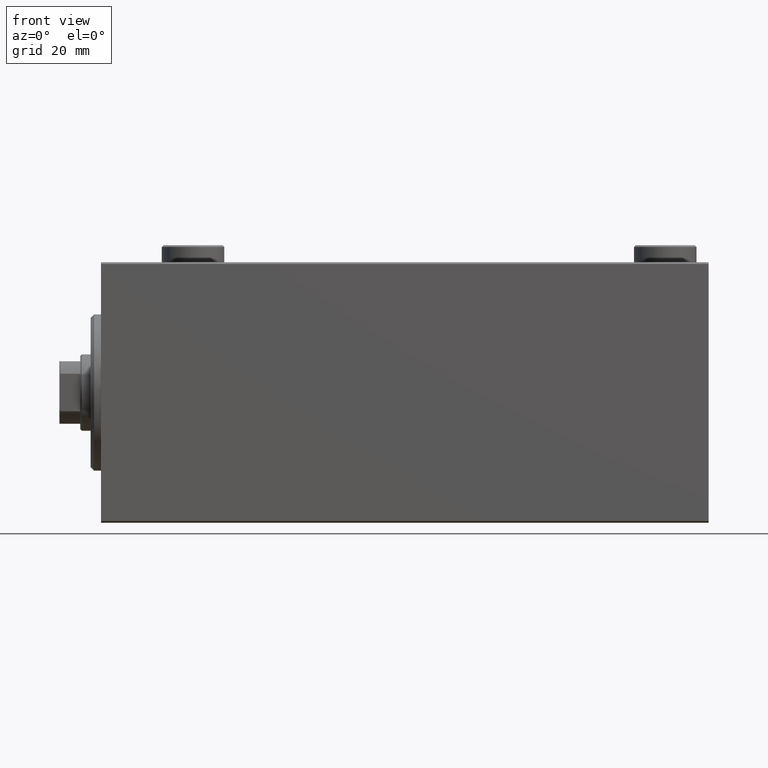
[diagram: clean part render]
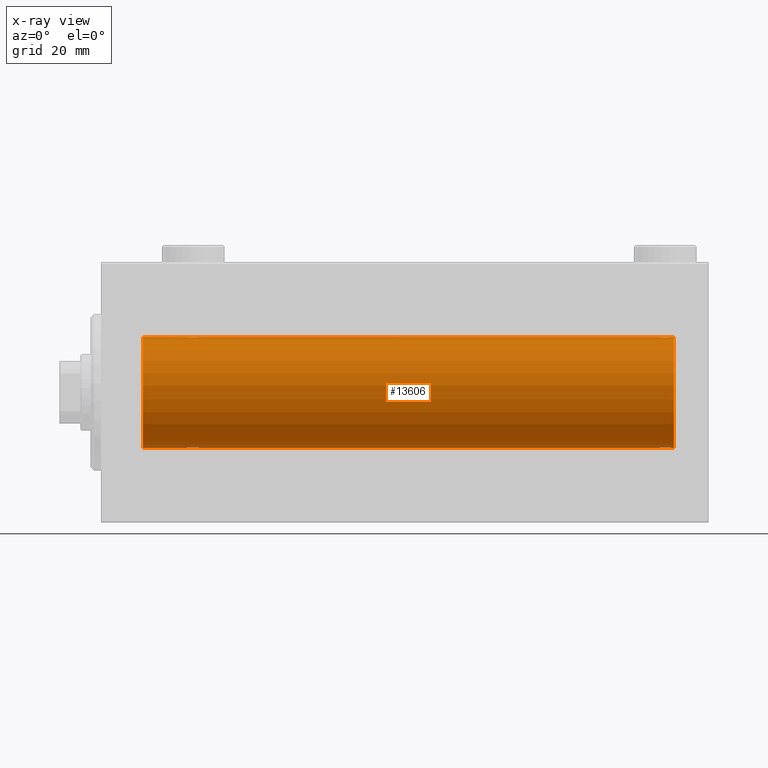
[diagram: x-ray — body ghosted, one internal face saturated and labeled with its STEP entity id]
A machine part, front view, then the same camera in x-ray: the body is ghosted and one INTERNAL B-rep face — a face not visible from any outside direction — is saturated and labeled: STEP entity #13606.
In plain terms, the highlighted cylindrical surface (partial cylindrical patch) has radius 16 mm, axis along (-1, -0, -0).
Its self-contained STEP definition (entity closure, byte-faithful):
#219 = CARTESIAN_POINT ( 'NONE',  ( 165.0000000000000000, 1.959434878635765131E-15, -16.00000000000000000 ) ) ;
#312 = CIRCLE ( 'NONE', #32735, 16.00000000000000000 ) ;
#485 = VECTOR ( 'NONE', #20025, 1000.000000000000000 ) ;
#803 = DIRECTION ( 'NONE',  ( 0.000000000000000000, 0.000000000000000000, 1.000000000000000000 ) ) ;
#1709 = DIRECTION ( 'NONE',  ( 0.000000000000000000, 0.000000000000000000, 1.000000000000000000 ) ) ;
#1962 = CARTESIAN_POINT ( 'NONE',  ( 161.9806288545207167, -1.935780515549996750, 15.88248768234623221 ) ) ;
#2245 = CARTESIAN_POINT ( 'NONE',  ( 160.5000000000000000, -0.2645044045393602494, -16.00000000000000000 ) ) ;
#2412 = CARTESIAN_POINT ( 'NONE',  ( 163.5007836575340718, -1.736521253711146517, 15.90565326803671731 ) ) ;
#2680 = CARTESIAN_POINT ( 'NONE',  ( 25.28178127159713995, -1.591545514129671046, -15.92081325887754417 ) ) ;
#2706 = CARTESIAN_POINT ( 'NONE',  ( 26.36633336824380436, -1.999904855391111402, 15.87451985347842687 ) ) ;
#3118 = B_SPLINE_CURVE_WITH_KNOTS ( 'NONE', 3,
 ( #22526, #16307, #33613, #13298, #19765, #5480, #37969, #34294, #37520, #24120, #33850, #30143, #2706, #6392, #5717, #44659, #12856, #20439, #19990, #30371, #30831, #45097, #9838, #12620, #26651, #23894 ),
 .UNSPECIFIED., .F., .F.,
 ( 4, 2, 2, 2, 2, 2, 2, 2, 2, 2, 2, 2, 4 ),
 ( 0.006259031236593858190, 0.007041222816026928080, 0.007823414395459998838, 0.008214510185176533349, 0.008605605974893067861, 0.008996701764609604107, 0.009387797554326138619, 0.009778893344042673130, 0.01016998913375920938, 0.01056108492347574389, 0.01095218071319227840, 0.01173437229262534048, 0.01251656387205840430 ),
 .UNSPECIFIED. ) ;
#3363 = CARTESIAN_POINT ( 'NONE',  ( 25.98335998918949841, -1.936513707523809469, -15.88239801746204805 ) ) ;
#4823 = EDGE_CURVE ( 'NONE', #7920, #31557, #3118, .T. ) ;
#5131 = B_SPLINE_CURVE_WITH_KNOTS ( 'NONE', 3,
 ( #29847, #26145, #19927, #9095, #8867, #43906, #9331, #34002, #23143, #19464, #1962, #30306, #44132, #12559, #44355, #37234, #6094, #5650, #2412, #27058, #16469, #30535, #41143, #9556, #20150, #27957 ),
 .UNSPECIFIED., .F., .F.,
 ( 4, 2, 2, 2, 2, 2, 2, 2, 2, 2, 2, 2, 4 ),
 ( 0.006259031236593856455, 0.007041222816026924611, 0.007823414395459991899, 0.008214510185176526411, 0.008605605974893060922, 0.008996701764609595434, 0.009387797554326129945, 0.009778893344042662722, 0.01016998913375919723, 0.01056108492347573174, 0.01095218071319226452, 0.01173437229262533181, 0.01251656387205839910 ),
 .UNSPECIFIED. ) ;
#5283 = CARTESIAN_POINT ( 'NONE',  ( 165.0000000000000000, 0.000000000000000000, 16.00000000000000000 ) ) ;
#5480 = CARTESIAN_POINT ( 'NONE',  ( 25.17695155286792286, -1.505501573616977673, 15.92928245046054947 ) ) ;
#5584 = CARTESIAN_POINT ( 'NONE',  ( 160.4999999999999716, -2.238448963845692285E-14, -16.00000000000000000 ) ) ;
#5650 = CARTESIAN_POINT ( 'NONE',  ( 163.3859214996849119, -1.797863738508695963, 15.89874935709251247 ) ) ;
#5717 = CARTESIAN_POINT ( 'NONE',  ( 26.76082820349364866, -1.987201773464435828, 15.87613558886576470 ) ) ;
#5916 = CARTESIAN_POINT ( 'NONE',  ( 26.36919591423421139, -2.000094120337574388, -15.87449600834271024 ) ) ;
#5973 = LINE ( 'NONE', #5283, #485 ) ;
#6094 = CARTESIAN_POINT ( 'NONE',  ( 163.1437667071733983, -1.898087287925298128, 15.88709570026284723 ) ) ;
#6392 = CARTESIAN_POINT ( 'NONE',  ( 26.63080408576578861, -2.000094120337581050, 15.87449600834271735 ) ) ;
#6593 = CARTESIAN_POINT ( 'NONE',  ( 26.76370462878175260, -1.986819684797417995, -15.87618369521984185 ) ) ;
#7283 = ORIENTED_EDGE ( 'NONE', *, *, #40569, .F. ) ;
#7607 = B_SPLINE_CURVE_WITH_KNOTS ( 'NONE', 3,
 ( #8700, #15843, #22966, #26886, #9152, #25969, #44187, #36602, #43726, #16297, #44411, #29902, #12610, #23200, #30361, #40284, #37289, #22748, #43501, #33364, #43963, #26198, #37510, #29662, #2245, #37052 ),
 .UNSPECIFIED., .F., .F.,
 ( 4, 2, 2, 2, 2, 2, 2, 2, 2, 2, 2, 2, 4 ),
 ( 0.006259031236593847781, 0.007041222816026931550, 0.007823414395460014450, 0.008214510185176555901, 0.008605605974893097351, 0.008996701764609638802, 0.009387797554326181987, 0.009778893344042723437, 0.01016998913375926489, 0.01056108492347580634, 0.01095218071319234779, 0.01173437229262537171, 0.01251656387205839736 ),
 .UNSPECIFIED. ) ;
#7920 = VERTEX_POINT ( 'NONE', #41819 ) ;
#7987 = VERTEX_POINT ( 'NONE', #39506 ) ;
#8537 = VERTEX_POINT ( 'NONE', #16031 ) ;
#8700 = CARTESIAN_POINT ( 'NONE',  ( 164.4999999999999716, 1.959434851248285101E-15, -16.00000000000000000 ) ) ;
#8713 = ORIENTED_EDGE ( 'NONE', *, *, #36876, .F. ) ;
#8867 = CARTESIAN_POINT ( 'NONE',  ( 160.9006141867461679, -1.228793614424107172, 15.95381972293797013 ) ) ;
#9095 = CARTESIAN_POINT ( 'NONE',  ( 160.7518337299378572, -1.005876079953900604, 15.97016854943970188 ) ) ;
#9152 = CARTESIAN_POINT ( 'NONE',  ( 164.0993858132537753, -1.228793614424117386, -15.95381972293797013 ) ) ;
#9327 = ORIENTED_EDGE ( 'NONE', *, *, #12554, .T. ) ;
#9331 = CARTESIAN_POINT ( 'NONE',  ( 161.2797196652158505, -1.589957129871026664, 15.92097237843274193 ) ) ;
#9534 = ORIENTED_EDGE ( 'NONE', *, *, #32871, .F. ) ;
#9556 = CARTESIAN_POINT ( 'NONE',  ( 164.4467400469564211, -0.5272875822566903681, 15.99312147175147381 ) ) ;
#9593 = CARTESIAN_POINT ( 'NONE',  ( 26.23917179650637266, -1.987201773464430055, -15.87613558886576470 ) ) ;
#9770 = LINE ( 'NONE', #34227, #13080 ) ;
#9838 = CARTESIAN_POINT ( 'NONE',  ( 28.24678128854693426, -1.008257970366811751, 15.97001510549667103 ) ) ;
#10188 = CARTESIAN_POINT ( 'NONE',  ( 165.0000000000000000, 0.000000000000000000, 16.00000000000000000 ) ) ;
#10232 = DIRECTION ( 'NONE',  ( -1.000000000000000000, -0.000000000000000000, -0.000000000000000000 ) ) ;
#11337 = ORIENTED_EDGE ( 'NONE', *, *, #22426, .T. ) ;
#11568 = ORIENTED_EDGE ( 'NONE', *, *, #4823, .T. ) ;
#11901 = VERTEX_POINT ( 'NONE', #14739 ) ;
#12087 = CARTESIAN_POINT ( 'NONE',  ( 12.00000000000001066, 0.000000000000000000, 0.000000000000000000 ) ) ;
#12319 = LINE ( 'NONE', #36761, #27483 ) ;
#12554 = EDGE_CURVE ( 'NONE', #32126, #11901, #312, .T. ) ;
#12559 = CARTESIAN_POINT ( 'NONE',  ( 162.6308040857657318, -2.000094120337579717, 15.87449600834271379 ) ) ;
#12610 = CARTESIAN_POINT ( 'NONE',  ( 162.6336666317561708, -1.999904855391120506, -15.87451985347842331 ) ) ;
#12620 = CARTESIAN_POINT ( 'NONE',  ( 28.44674004695639624, -0.5272875822566815973, 15.99312147175146670 ) ) ;
#12833 = CARTESIAN_POINT ( 'NONE',  ( 24.50000000000000000, -2.931586893697621157E-15, -16.00000000000000000 ) ) ;
#12856 = CARTESIAN_POINT ( 'NONE',  ( 27.14376670717340545, -1.898087287925302125, 15.88709570026284545 ) ) ;
#13080 = VECTOR ( 'NONE', #10232, 1000.000000000000000 ) ;
#13234 = ORIENTED_EDGE ( 'NONE', *, *, #42494, .T. ) ;
#13273 = CARTESIAN_POINT ( 'NONE',  ( 24.50000000000000711, -0.2645044045393414311, -16.00000000000000355 ) ) ;
#13298 = CARTESIAN_POINT ( 'NONE',  ( 24.75183372993787856, -1.005876079953904600, 15.97016854943970543 ) ) ;
#13374 = EDGE_CURVE ( 'NONE', #43251, #7987, #35272, .T. ) ;
#13492 = CARTESIAN_POINT ( 'NONE',  ( 26.63366663175618498, -1.999904855391105851, -15.87451985347842687 ) ) ;
#13606 = ADVANCED_FACE ( 'NONE', ( #40767 ), #24530, .F. ) ;
#13825 = DIRECTION ( 'NONE',  ( -1.000000000000000000, -0.000000000000000000, -0.000000000000000000 ) ) ;
#14639 = DIRECTION ( 'NONE',  ( -1.000000000000000000, 0.000000000000000000, 0.000000000000000000 ) ) ;
#14739 = CARTESIAN_POINT ( 'NONE',  ( 12.00000000000001066, 0.000000000000000000, 16.00000000000000000 ) ) ;
#14847 = VERTEX_POINT ( 'NONE', #12833 ) ;
#15554 = LINE ( 'NONE', #20932, #43273 ) ;
#15843 = CARTESIAN_POINT ( 'NONE',  ( 164.5000000000000284, -0.2611263091397180158, -16.00000000000000000 ) ) ;
#16031 = CARTESIAN_POINT ( 'NONE',  ( 28.49999999999999645, 1.959434851239213200E-15, -16.00000000000000000 ) ) ;
#16151 = ORIENTED_EDGE ( 'NONE', *, *, #26968, .T. ) ;
#16297 = CARTESIAN_POINT ( 'NONE',  ( 163.1463636287045631, -1.897207606501654764, -15.88720136683947537 ) ) ;
#16307 = CARTESIAN_POINT ( 'NONE',  ( 24.50000000000000355, -0.2611263091397209579, 16.00000000000000000 ) ) ;
#16469 = CARTESIAN_POINT ( 'NONE',  ( 163.8210433480340384, -1.507256214862776167, 15.92911555180481820 ) ) ;
#16736 = CARTESIAN_POINT ( 'NONE',  ( 24.75321871145306218, -1.008257970366813749, -15.97001510549667458 ) ) ;
#17177 = CARTESIAN_POINT ( 'NONE',  ( 24.55325995304361086, -0.5272875822566835957, -15.99312147175147736 ) ) ;
#17409 = CARTESIAN_POINT ( 'NONE',  ( 165.0000000000000000, 0.000000000000000000, 0.000000000000000000 ) ) ;
#17478 = DIRECTION ( 'NONE',  ( -1.000000000000000000, -0.000000000000000000, -0.000000000000000000 ) ) ;
#18006 = AXIS2_PLACEMENT_3D ( 'NONE', #28457, #30851, #803 ) ;
#18893 = VERTEX_POINT ( 'NONE', #10188 ) ;
#19213 = DIRECTION ( 'NONE',  ( 0.000000000000000000, 0.000000000000000000, 1.000000000000000000 ) ) ;
#19464 = CARTESIAN_POINT ( 'NONE',  ( 161.8536363712953801, -1.897207606501642996, 15.88720136683947537 ) ) ;
#19765 = CARTESIAN_POINT ( 'NONE',  ( 24.90061418674620342, -1.228793614424124714, 15.95381972293797368 ) ) ;
#19915 = ORIENTED_EDGE ( 'NONE', *, *, #34025, .T. ) ;
#19927 = CARTESIAN_POINT ( 'NONE',  ( 160.5524885896873002, -0.5244724041436295003, 15.99321727742820975 ) ) ;
#19966 = CARTESIAN_POINT ( 'NONE',  ( 24.50000000000000000, -2.931586893697621157E-15, -16.00000000000000000 ) ) ;
#19990 = CARTESIAN_POINT ( 'NONE',  ( 27.50078365753405407, -1.736521253711149182, 15.90565326803671375 ) ) ;
#20025 = DIRECTION ( 'NONE',  ( -1.000000000000000000, -0.000000000000000000, -0.000000000000000000 ) ) ;
#20142 = CARTESIAN_POINT ( 'NONE',  ( 164.4999999999999716, -5.805030688536432137E-15, 16.00000000000000000 ) ) ;
#20150 = CARTESIAN_POINT ( 'NONE',  ( 164.4999999999999716, -0.2645044045393381005, 16.00000000000000711 ) ) ;
#20439 = CARTESIAN_POINT ( 'NONE',  ( 27.38592149968496514, -1.797863738508701736, 15.89874935709250892 ) ) ;
#20932 = CARTESIAN_POINT ( 'NONE',  ( 165.0000000000000000, 1.959434878635765131E-15, -16.00000000000000000 ) ) ;
#21913 = VERTEX_POINT ( 'NONE', #5584 ) ;
#22426 = EDGE_CURVE ( 'NONE', #21913, #8537, #15554, .T. ) ;
#22499 = EDGE_CURVE ( 'NONE', #42495, #29817, #5131, .T. ) ;
#22526 = CARTESIAN_POINT ( 'NONE',  ( 24.50000000000000000, -2.739635037742051899E-23, 16.00000000000000000 ) ) ;
#22748 = CARTESIAN_POINT ( 'NONE',  ( 161.6140785003150029, -1.797863738508707954, -15.89874935709249826 ) ) ;
#22966 = CARTESIAN_POINT ( 'NONE',  ( 164.4475114103126430, -0.5244724041436316098, -15.99321727742820975 ) ) ;
#23143 = CARTESIAN_POINT ( 'NONE',  ( 161.6115385917071876, -1.796613193944146980, 15.89889131367403330 ) ) ;
#23200 = CARTESIAN_POINT ( 'NONE',  ( 162.3691959142342398, -2.000094120337590375, -15.87449600834270313 ) ) ;
#23417 = CARTESIAN_POINT ( 'NONE',  ( 25.61407850031505617, -1.797863738508699294, -15.89874935709251247 ) ) ;
#23866 = CARTESIAN_POINT ( 'NONE',  ( 28.24816627006211078, -1.005876079953899049, -15.97016854943970188 ) ) ;
#23894 = CARTESIAN_POINT ( 'NONE',  ( 28.49999999999999645, -1.207828523974853969E-15, 16.00000000000000000 ) ) ;
#24093 = CARTESIAN_POINT ( 'NONE',  ( 28.09938581325380724, -1.228793614424118497, -15.95381972293796835 ) ) ;
#24120 = CARTESIAN_POINT ( 'NONE',  ( 25.85363637129542624, -1.897207606501653432, 15.88720136683947182 ) ) ;
#24530 = CYLINDRICAL_SURFACE ( 'NONE', #18006, 16.00000000000000000 ) ;
#24710 = ORIENTED_EDGE ( 'NONE', *, *, #22499, .T. ) ;
#25384 = EDGE_CURVE ( 'NONE', #7920, #11901, #12319, .T. ) ;
#25969 = CARTESIAN_POINT ( 'NONE',  ( 163.8230484471320949, -1.505501573616972344, -15.92928245046055657 ) ) ;
#26145 = CARTESIAN_POINT ( 'NONE',  ( 160.4999999999999716, -0.2611263091397192926, 16.00000000000000000 ) ) ;
#26198 = CARTESIAN_POINT ( 'NONE',  ( 160.9023686404280227, -1.231048876942829384, -15.95364199493483959 ) ) ;
#26353 = DIRECTION ( 'NONE',  ( -1.000000000000000000, 0.000000000000000000, 0.000000000000000000 ) ) ;
#26651 = CARTESIAN_POINT ( 'NONE',  ( 28.49999999999999289, -0.2645044045393371013, 16.00000000000000000 ) ) ;
#26886 = CARTESIAN_POINT ( 'NONE',  ( 164.2481662700621428, -1.005876079953903268, -15.97016854943969832 ) ) ;
#26968 = EDGE_CURVE ( 'NONE', #7987, #21913, #7607, .T. ) ;
#27058 = CARTESIAN_POINT ( 'NONE',  ( 163.7182187284028032, -1.591545514129670824, 15.92081325887754595 ) ) ;
#27099 = CARTESIAN_POINT ( 'NONE',  ( 28.44751141031268915, -0.5244724041436300555, -15.99321727742820620 ) ) ;
#27316 = CARTESIAN_POINT ( 'NONE',  ( 27.72028033478412112, -1.589957129871027330, -15.92097237843274904 ) ) ;
#27413 = ORIENTED_EDGE ( 'NONE', *, *, #13374, .T. ) ;
#27483 = VECTOR ( 'NONE', #37438, 1000.000000000000000 ) ;
#27546 = CARTESIAN_POINT ( 'NONE',  ( 25.17895665196594379, -1.507256214862784161, -15.92911555180481820 ) ) ;
#27957 = CARTESIAN_POINT ( 'NONE',  ( 164.4999999999999716, -5.805030688536432137E-15, 16.00000000000000000 ) ) ;
#28457 = CARTESIAN_POINT ( 'NONE',  ( 165.0000000000000000, 0.000000000000000000, 0.000000000000000000 ) ) ;
#28559 = CARTESIAN_POINT ( 'NONE',  ( 12.00000000000001066, 1.959434878635765131E-15, -16.00000000000000000 ) ) ;
#29662 = CARTESIAN_POINT ( 'NONE',  ( 160.5532599530435789, -0.5272875822567044679, -15.99312147175147025 ) ) ;
#29773 = CARTESIAN_POINT ( 'NONE',  ( 160.4999999999999716, -2.738767290746308786E-23, 16.00000000000000000 ) ) ;
#29817 = VERTEX_POINT ( 'NONE', #20142 ) ;
#29847 = CARTESIAN_POINT ( 'NONE',  ( 160.4999999999999716, -2.738767290746308786E-23, 16.00000000000000000 ) ) ;
#29902 = CARTESIAN_POINT ( 'NONE',  ( 162.7637046287817668, -1.986819684797435759, -15.87618369521983830 ) ) ;
#30143 = CARTESIAN_POINT ( 'NONE',  ( 26.23629537121825095, -1.986819684797424435, 15.87618369521983475 ) ) ;
#30306 = CARTESIAN_POINT ( 'NONE',  ( 162.2362953712182332, -1.986819684797424435, 15.87618369521983830 ) ) ;
#30343 = CARTESIAN_POINT ( 'NONE',  ( 24.90236864042802267, -1.231048876942801407, -15.95364199493483426 ) ) ;
#30361 = CARTESIAN_POINT ( 'NONE',  ( 162.2391717965064117, -1.987201773464449595, -15.87613558886576115 ) ) ;
#30371 = CARTESIAN_POINT ( 'NONE',  ( 27.71821872840285295, -1.591545514129674821, 15.92081325887754595 ) ) ;
#30535 = CARTESIAN_POINT ( 'NONE',  ( 164.0976313595719489, -1.231048876942790749, 15.95364199493483959 ) ) ;
#30556 = VECTOR ( 'NONE', #13825, 1000.000000000000000 ) ;
#30574 = CIRCLE ( 'NONE', #37937, 16.00000000000000000 ) ;
#30831 = CARTESIAN_POINT ( 'NONE',  ( 27.82104334803405266, -1.507256214862787713, 15.92911555180482530 ) ) ;
#30851 = DIRECTION ( 'NONE',  ( -1.000000000000000000, -0.000000000000000000, -0.000000000000000000 ) ) ;
#31557 = VERTEX_POINT ( 'NONE', #33973 ) ;
#32126 = VERTEX_POINT ( 'NONE', #28559 ) ;
#32735 = AXIS2_PLACEMENT_3D ( 'NONE', #12087, #26353, #19213 ) ;
#32871 = EDGE_CURVE ( 'NONE', #43251, #18893, #30574, .T. ) ;
#33025 = LINE ( 'NONE', #40159, #33808 ) ;
#33364 = CARTESIAN_POINT ( 'NONE',  ( 161.2817812715971115, -1.591545514129687922, -15.92081325887754417 ) ) ;
#33613 = CARTESIAN_POINT ( 'NONE',  ( 24.55248858968731085, -0.5244724041436337192, 15.99321727742820975 ) ) ;
#33808 = VECTOR ( 'NONE', #36925, 1000.000000000000000 ) ;
#33850 = CARTESIAN_POINT ( 'NONE',  ( 25.98062885452072734, -1.935780515549995862, 15.88248768234623221 ) ) ;
#33973 = CARTESIAN_POINT ( 'NONE',  ( 28.49999999999999645, -1.207828523974853969E-15, 16.00000000000000000 ) ) ;
#34002 = CARTESIAN_POINT ( 'NONE',  ( 161.4967921520867549, -1.735114343256362490, 15.90580722143557502 ) ) ;
#34025 = EDGE_CURVE ( 'NONE', #8537, #14847, #36868, .T. ) ;
#34227 = CARTESIAN_POINT ( 'NONE',  ( 165.0000000000000000, 0.000000000000000000, 16.00000000000000000 ) ) ;
#34269 = CARTESIAN_POINT ( 'NONE',  ( 25.49921634246596014, -1.736521253711144963, -15.90565326803671375 ) ) ;
#34294 = CARTESIAN_POINT ( 'NONE',  ( 25.49679215208682592, -1.735114343256370262, 15.90580722143557502 ) ) ;
#34713 = CARTESIAN_POINT ( 'NONE',  ( 27.01937114547927266, -1.935780515549990088, -15.88248768234623576 ) ) ;
#34944 = CARTESIAN_POINT ( 'NONE',  ( 25.85623329282660166, -1.898087287925298794, -15.88709570026284545 ) ) ;
#35272 = LINE ( 'NONE', #219, #30556 ) ;
#36602 = CARTESIAN_POINT ( 'NONE',  ( 163.5032078479131314, -1.735114343256374925, -15.90580722143557857 ) ) ;
#36761 = CARTESIAN_POINT ( 'NONE',  ( 165.0000000000000000, 0.000000000000000000, 16.00000000000000000 ) ) ;
#36868 = B_SPLINE_CURVE_WITH_KNOTS ( 'NONE', 3,
 ( #45070, #44861, #27099, #23866, #24093, #41182, #27316, #45312, #37715, #38171, #34713, #6593, #13492, #5916, #9593, #3363, #34944, #23417, #34269, #2680, #27546, #30343, #16736, #17177, #13273, #19966 ),
 .UNSPECIFIED., .F., .F.,
 ( 4, 2, 2, 2, 2, 2, 2, 2, 2, 2, 2, 2, 4 ),
 ( 0.006259031236593877272, 0.007041222816026943693, 0.007823414395460009246, 0.008214510185176542023, 0.008605605974893074800, 0.008996701764609607577, 0.009387797554326140353, 0.009778893344042673130, 0.01016998913375920591, 0.01056108492347573868, 0.01095218071319227146, 0.01173437229262534222, 0.01251656387205841471 ),
 .UNSPECIFIED. ) ;
#36876 = EDGE_CURVE ( 'NONE', #18893, #29817, #5973, .T. ) ;
#36925 = DIRECTION ( 'NONE',  ( -1.000000000000000000, -0.000000000000000000, -0.000000000000000000 ) ) ;
#37052 = CARTESIAN_POINT ( 'NONE',  ( 160.4999999999999716, -2.238448963845692285E-14, -16.00000000000000000 ) ) ;
#37234 = CARTESIAN_POINT ( 'NONE',  ( 163.0166400108104767, -1.936513707523814354, 15.88239801746205160 ) ) ;
#37289 = CARTESIAN_POINT ( 'NONE',  ( 161.8562332928265732, -1.898087287925310562, -15.88709570026284723 ) ) ;
#37438 = DIRECTION ( 'NONE',  ( -1.000000000000000000, -0.000000000000000000, -0.000000000000000000 ) ) ;
#37510 = CARTESIAN_POINT ( 'NONE',  ( 160.7532187114530586, -1.008257970366834178, -15.97001510549667458 ) ) ;
#37520 = CARTESIAN_POINT ( 'NONE',  ( 25.61153859170720537, -1.796613193944160969, 15.89889131367403685 ) ) ;
#37715 = CARTESIAN_POINT ( 'NONE',  ( 27.38846140829280529, -1.796613193944152753, -15.89889131367403330 ) ) ;
#37937 = AXIS2_PLACEMENT_3D ( 'NONE', #17409, #14639, #1709 ) ;
#37969 = CARTESIAN_POINT ( 'NONE',  ( 25.27971966521589664, -1.589957129871035768, 15.92097237843274549 ) ) ;
#38171 = CARTESIAN_POINT ( 'NONE',  ( 27.14636362870458086, -1.897207606501646104, -15.88720136683947537 ) ) ;
#39506 = CARTESIAN_POINT ( 'NONE',  ( 164.4999999999999716, 1.959434851248285101E-15, -16.00000000000000000 ) ) ;
#40159 = CARTESIAN_POINT ( 'NONE',  ( 165.0000000000000000, 1.959434878635765131E-15, -16.00000000000000000 ) ) ;
#40284 = CARTESIAN_POINT ( 'NONE',  ( 161.9833599891895233, -1.936513707523834338, -15.88239801746204805 ) ) ;
#40569 = EDGE_CURVE ( 'NONE', #42495, #31557, #9770, .T. ) ;
#40767 = FACE_OUTER_BOUND ( 'NONE', #41668, .T. ) ;
#41143 = CARTESIAN_POINT ( 'NONE',  ( 164.2467812885468845, -1.008257970366816636, 15.97001510549667103 ) ) ;
#41182 = CARTESIAN_POINT ( 'NONE',  ( 27.82304844713206293, -1.505501573616970568, -15.92928245046054947 ) ) ;
#41668 = EDGE_LOOP ( 'NONE', ( #9534, #27413, #16151, #11337, #19915, #13234, #9327, #42088, #11568, #7283, #24710, #8713 ) ) ;
#41819 = CARTESIAN_POINT ( 'NONE',  ( 24.50000000000000000, -2.739635037742051899E-23, 16.00000000000000000 ) ) ;
#42088 = ORIENTED_EDGE ( 'NONE', *, *, #25384, .F. ) ;
#42494 = EDGE_CURVE ( 'NONE', #14847, #32126, #33025, .T. ) ;
#42495 = VERTEX_POINT ( 'NONE', #29773 ) ;
#43251 = VERTEX_POINT ( 'NONE', #45326 ) ;
#43273 = VECTOR ( 'NONE', #17478, 1000.000000000000000 ) ;
#43501 = CARTESIAN_POINT ( 'NONE',  ( 161.4992163424659566, -1.736521253711160728, -15.90565326803670665 ) ) ;
#43726 = CARTESIAN_POINT ( 'NONE',  ( 163.3884614082928124, -1.796613193944159637, -15.89889131367402975 ) ) ;
#43906 = CARTESIAN_POINT ( 'NONE',  ( 161.1769515528679051, -1.505501573616961686, 15.92928245046055302 ) ) ;
#43963 = CARTESIAN_POINT ( 'NONE',  ( 161.1789566519659331, -1.507256214862809918, -15.92911555180481464 ) ) ;
#44132 = CARTESIAN_POINT ( 'NONE',  ( 162.3663333682438008, -1.999904855391108072, 15.87451985347842687 ) ) ;
#44187 = CARTESIAN_POINT ( 'NONE',  ( 163.7202803347841211, -1.589957129871039099, -15.92097237843275259 ) ) ;
#44355 = CARTESIAN_POINT ( 'NONE',  ( 162.7608282034936167, -1.987201773464434051, 15.87613558886576115 ) ) ;
#44411 = CARTESIAN_POINT ( 'NONE',  ( 163.0193711454792549, -1.935780515550008962, -15.88248768234623576 ) ) ;
#44659 = CARTESIAN_POINT ( 'NONE',  ( 27.01664001081050515, -1.936513707523814354, 15.88239801746204805 ) ) ;
#44861 = CARTESIAN_POINT ( 'NONE',  ( 28.50000000000000355, -0.2611263091397186265, -16.00000000000000355 ) ) ;
#45070 = CARTESIAN_POINT ( 'NONE',  ( 28.49999999999999645, 1.959434851239213200E-15, -16.00000000000000000 ) ) ;
#45097 = CARTESIAN_POINT ( 'NONE',  ( 28.09763135957198799, -1.231048876942802961, 15.95364199493483781 ) ) ;
#45312 = CARTESIAN_POINT ( 'NONE',  ( 27.50320784791317763, -1.735114343256362712, -15.90580722143557502 ) ) ;
#45326 = CARTESIAN_POINT ( 'NONE',  ( 165.0000000000000000, 1.959434878635765131E-15, -16.00000000000000000 ) ) ;